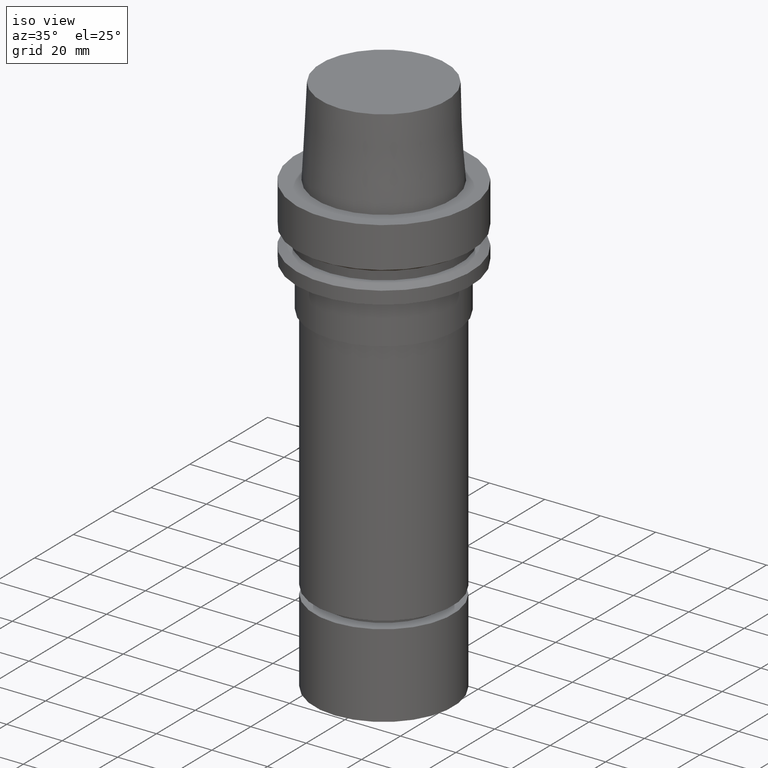
[diagram: clean part render]
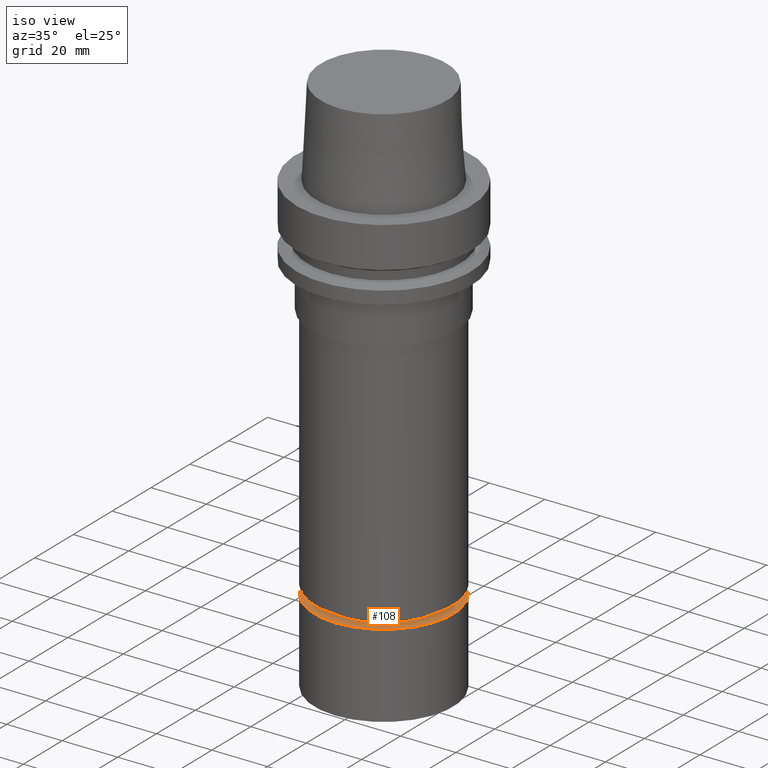
[diagram: same view with one face highlighted and labeled with its STEP entity id]
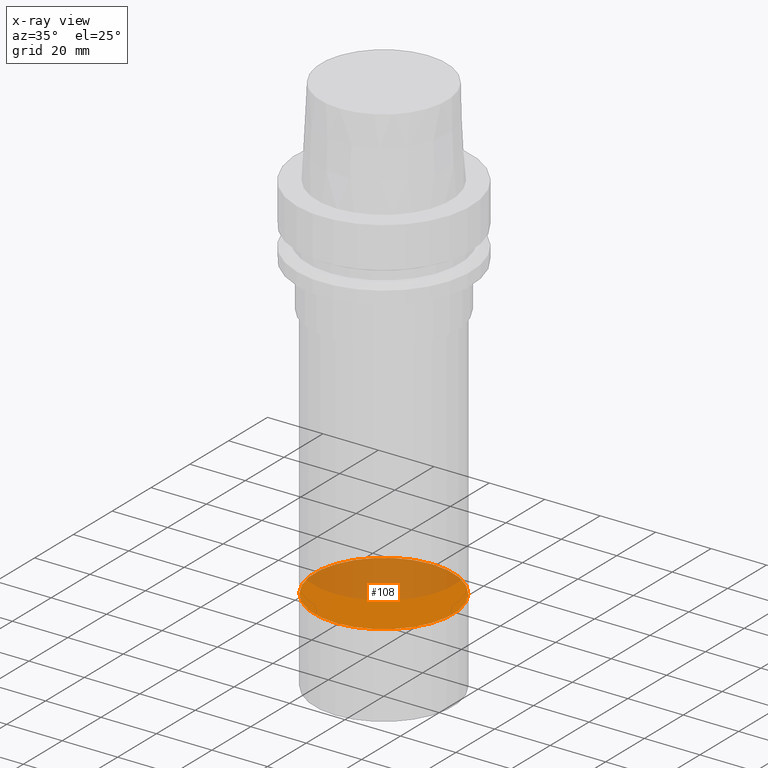
[diagram: x-ray of the same camera — body ghosted, the highlighted face saturated]
A machine part, iso view. The second image highlights one B-rep face of the part: STEP entity #108.
The next image is the same camera in x-ray: the body ghosted, the highlighted face saturated — about 50% of this face is hidden behind the body in this view.
In plain terms, the highlighted planar face has unit normal (-0, -0, 1).
Its self-contained STEP definition (entity closure, byte-faithful):
#108=ADVANCED_FACE('Unnamed[1]',(#261),#262,.T.);
#192=EDGE_CURVE('Unnamed[1]',#389,#389,#390,.T.);
#261=FACE_OUTER_BOUND('',#464,.T.);
#262=PLANE('',#465);
#389=VERTEX_POINT('',#623);
#390=CIRCLE('',#624,25.0);
#464=EDGE_LOOP('',(#682));
#465=AXIS2_PLACEMENT_3D('',#683,#684,#685);
#623=CARTESIAN_POINT('',(8.25411942625316E-015,25.0,-134.8));
#624=AXIS2_PLACEMENT_3D('',#823,#824,#825);
#682=ORIENTED_EDGE('',*,*,#192,.F.);
#683=CARTESIAN_POINT('',(8.25411942625316E-015,12.5,-134.8));
#684=DIRECTION('',(-6.12323399573677E-017,-1.22464679914735E-016,1.0));
#685=DIRECTION('',(1.23259516440783E-032,-1.0,-1.22464679914735E-016));
#823=CARTESIAN_POINT('',(8.25411942625316E-015,1.65082388525063E-014,-134.8));
#824=DIRECTION('',(6.12323399573677E-017,1.22464679914735E-016,-1.0));
#825=DIRECTION('',(-1.23259516440783E-032,1.0,1.22464679914735E-016));